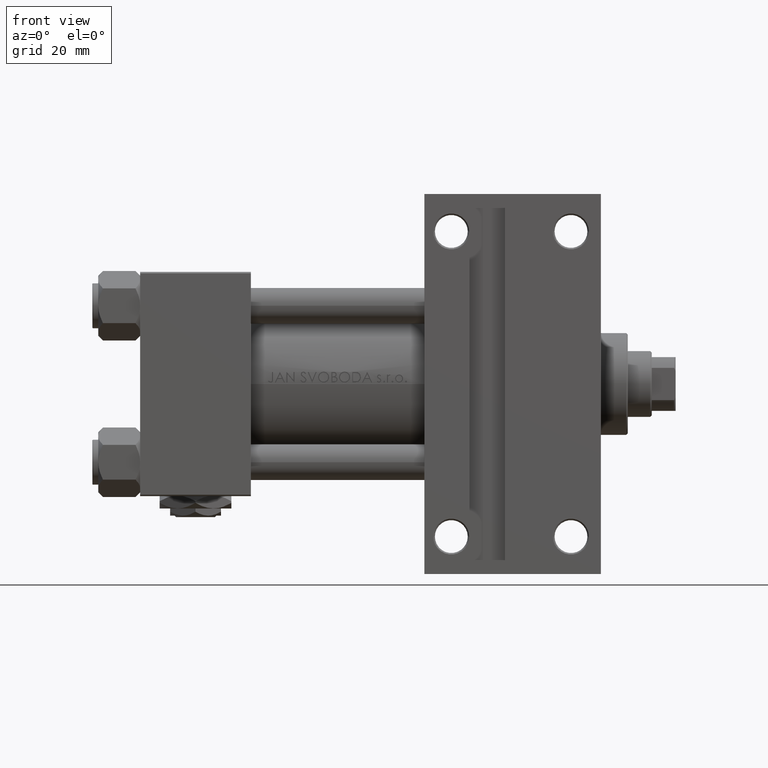
[diagram: clean part render]
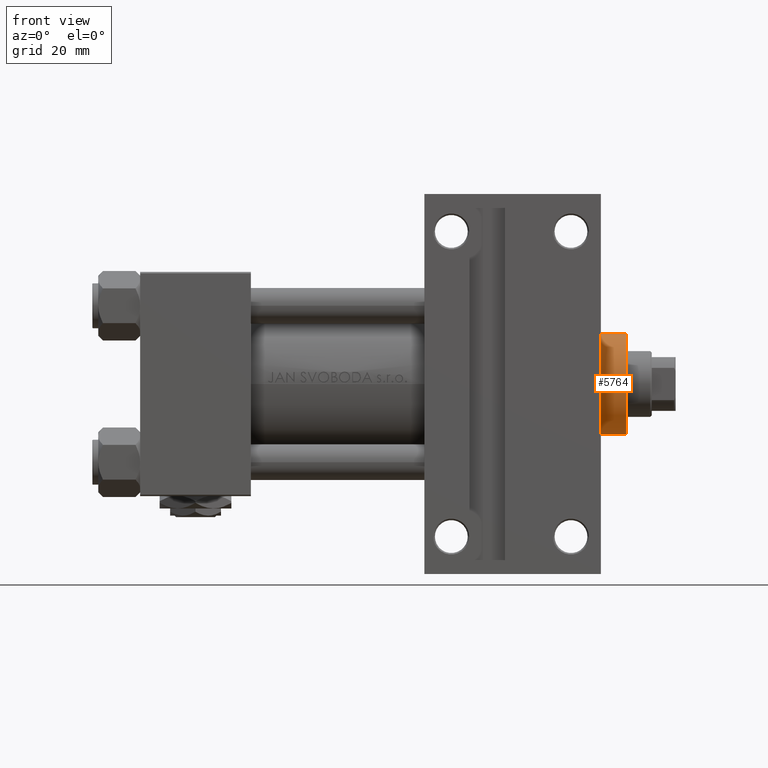
[diagram: same view with one face highlighted and labeled with its STEP entity id]
A machine part, front view. The second image highlights one B-rep face of the part: STEP entity #5764.
In plain terms, the highlighted cylindrical surface (partial cylindrical patch) has radius 17 mm, axis along (-1, 0, 0).
Its self-contained STEP definition (entity closure, byte-faithful):
#101 = CARTESIAN_POINT ( 'NONE',  ( -17.00000000000000000, 0.000000000000000000, 37.19999999999999574 ) ) ;
#1150 = CARTESIAN_POINT ( 'NONE',  ( 0.000000000000000000, 0.000000000000000000, 28.69999999999999929 ) ) ;
#4116 = AXIS2_PLACEMENT_3D ( 'NONE', #1150, #4920, #9410 ) ;
#4920 = DIRECTION ( 'NONE',  ( 0.000000000000000000, 0.000000000000000000, 1.000000000000000000 ) ) ;
#5764 = ADVANCED_FACE ( 'NONE', ( #33294 ), #36831, .T. ) ;
#7341 = VERTEX_POINT ( 'NONE', #101 ) ;
#8913 = AXIS2_PLACEMENT_3D ( 'NONE', #33527, #41558, #13964 ) ;
#9115 = DIRECTION ( 'NONE',  ( 0.000000000000000000, 0.000000000000000000, -1.000000000000000000 ) ) ;
#9409 = DIRECTION ( 'NONE',  ( -0.000000000000000000, -0.000000000000000000, -1.000000000000000000 ) ) ;
#9410 = DIRECTION ( 'NONE',  ( 1.000000000000000000, 0.000000000000000000, 0.000000000000000000 ) ) ;
#10324 = CARTESIAN_POINT ( 'NONE',  ( 17.00000000000000000, 2.081899558550500280E-15, 37.69999999999999574 ) ) ;
#13964 = DIRECTION ( 'NONE',  ( -1.000000000000000000, 0.000000000000000000, 0.000000000000000000 ) ) ;
#14280 = ORIENTED_EDGE ( 'NONE', *, *, #47580, .T. ) ;
#15281 = ORIENTED_EDGE ( 'NONE', *, *, #22232, .T. ) ;
#16790 = ORIENTED_EDGE ( 'NONE', *, *, #40362, .F. ) ;
#17137 = VECTOR ( 'NONE', #9409, 1000.000000000000000 ) ;
#18697 = CARTESIAN_POINT ( 'NONE',  ( -17.00000000000000000, 0.000000000000000000, 28.69999999999999929 ) ) ;
#19334 = CIRCLE ( 'NONE', #4116, 17.00000000000000000 ) ;
#20622 = VECTOR ( 'NONE', #36949, 1000.000000000000000 ) ;
#21858 = CIRCLE ( 'NONE', #38695, 17.00000000000000000 ) ;
#21954 = VERTEX_POINT ( 'NONE', #33467 ) ;
#22232 = EDGE_CURVE ( 'NONE', #29836, #21954, #48281, .T. ) ;
#24447 = DIRECTION ( 'NONE',  ( 1.000000000000000000, 0.000000000000000000, 0.000000000000000000 ) ) ;
#29836 = VERTEX_POINT ( 'NONE', #35712 ) ;
#32515 = LINE ( 'NONE', #47850, #17137 ) ;
#33294 = FACE_OUTER_BOUND ( 'NONE', #41947, .T. ) ;
#33467 = CARTESIAN_POINT ( 'NONE',  ( 17.00000000000000000, 2.081899558550500280E-15, 28.69999999999999929 ) ) ;
#33527 = CARTESIAN_POINT ( 'NONE',  ( 0.000000000000000000, 0.000000000000000000, 37.69999999999999574 ) ) ;
#35712 = CARTESIAN_POINT ( 'NONE',  ( 17.00000000000000000, 2.081899558550500280E-15, 37.19999999999999574 ) ) ;
#36831 = CYLINDRICAL_SURFACE ( 'NONE', #8913, 17.00000000000000000 ) ;
#36949 = DIRECTION ( 'NONE',  ( -0.000000000000000000, -0.000000000000000000, -1.000000000000000000 ) ) ;
#37065 = EDGE_CURVE ( 'NONE', #7341, #29836, #21858, .T. ) ;
#38695 = AXIS2_PLACEMENT_3D ( 'NONE', #43512, #9115, #24447 ) ;
#40362 = EDGE_CURVE ( 'NONE', #7341, #49403, #32515, .T. ) ;
#41213 = ORIENTED_EDGE ( 'NONE', *, *, #37065, .T. ) ;
#41558 = DIRECTION ( 'NONE',  ( -0.000000000000000000, -0.000000000000000000, -1.000000000000000000 ) ) ;
#41947 = EDGE_LOOP ( 'NONE', ( #41213, #15281, #14280, #16790 ) ) ;
#43512 = CARTESIAN_POINT ( 'NONE',  ( 0.000000000000000000, 0.000000000000000000, 37.19999999999999574 ) ) ;
#47580 = EDGE_CURVE ( 'NONE', #21954, #49403, #19334, .T. ) ;
#47850 = CARTESIAN_POINT ( 'NONE',  ( -17.00000000000000000, 0.000000000000000000, 37.69999999999999574 ) ) ;
#48281 = LINE ( 'NONE', #10324, #20622 ) ;
#49403 = VERTEX_POINT ( 'NONE', #18697 ) ;